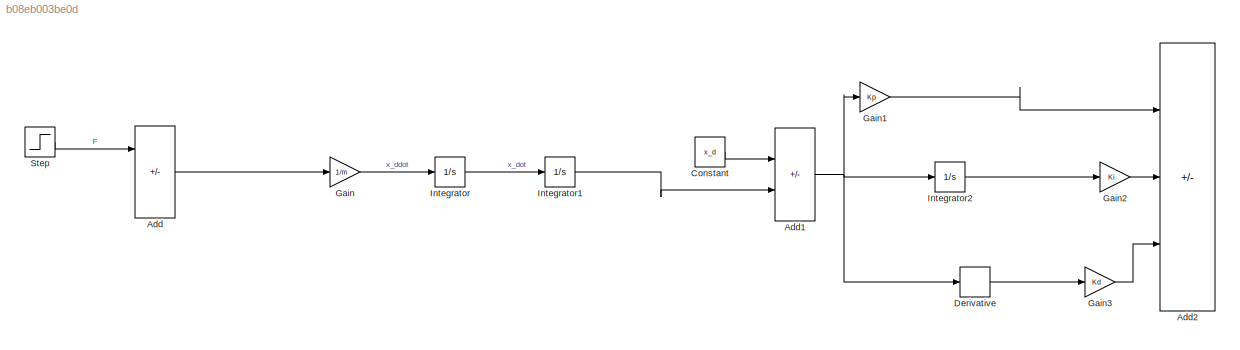
MODEL slx_b08eb003be0d
KIND model
CONFIG AbsTol = auto
CONFIG EnableMultiTasking = off
CONFIG FixedStep = auto
CONFIG MaxStep = auto
CONFIG MinStep = auto
CONFIG RelTol = 1e-3
CONFIG SampleTimeConstraint = Unconstrained
CONFIG SolverName = VariableStepAuto
CONFIG StartTime = 0.0
CONFIG StopTime = 10.0
BLOCK [Sum] Add
  IconShape = rectangular
  Inputs = ++-
BLOCK [Sum] Add1
  IconShape = rectangular
  Inputs = -+
BLOCK [Sum] Add2
  IconShape = rectangular
  Inputs = ++-
BLOCK [Constant] Constant
  Value = x_d
BLOCK [Derivative] Derivative
BLOCK [Gain] Gain
  Gain = 1/m
BLOCK [Gain] Gain1
  Gain = Kp
BLOCK [Gain] Gain2
  Gain = Ki
BLOCK [Gain] Gain3
  Gain = Kd
BLOCK [Integrator] Integrator
BLOCK [Integrator] Integrator1
BLOCK [Integrator] Integrator2
BLOCK [Step] Step
  SampleTime = 0
NET Add1:1 -> Derivative:1, Gain1:1, Integrator2:1
LINE Add:1 -> Gain:1
LINE Constant:1 -> Add1:1
LINE Derivative:1 -> Gain3:1
LINE Gain1:1 -> Add2:1
LINE Gain2:1 -> Add2:2
LINE Gain3:1 -> Add2:3
LINE Gain:1 -> Integrator:1
LINE Integrator1:1 -> Add1:2
LINE Integrator2:1 -> Gain2:1
LINE Integrator:1 -> Integrator1:1
LINE Step:1 -> Add:1
note: NET lines group one-source signal fan-out (src -> all destinations, sorted); 1:1 wires keep LINE
